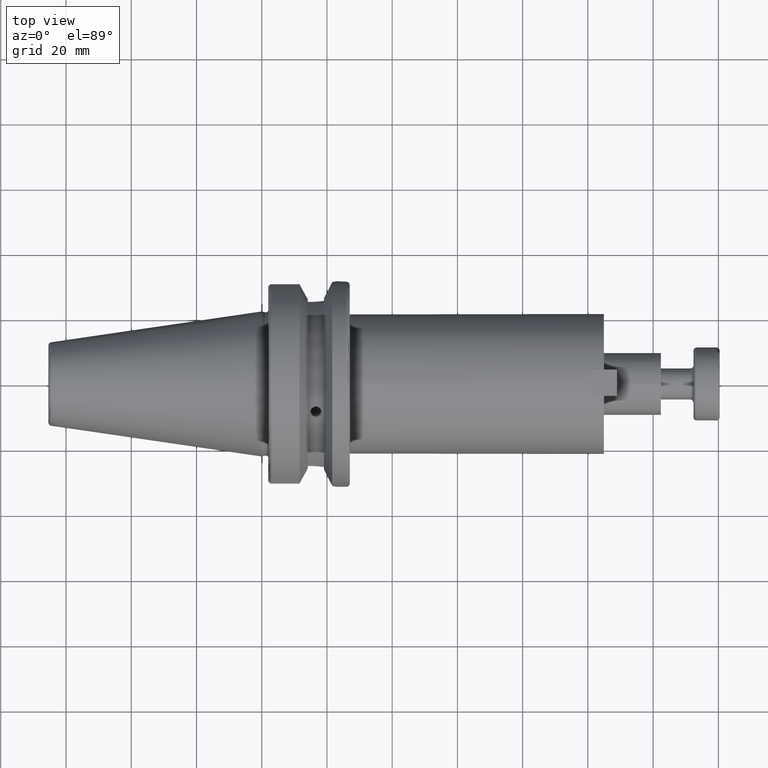
[diagram: clean part render]
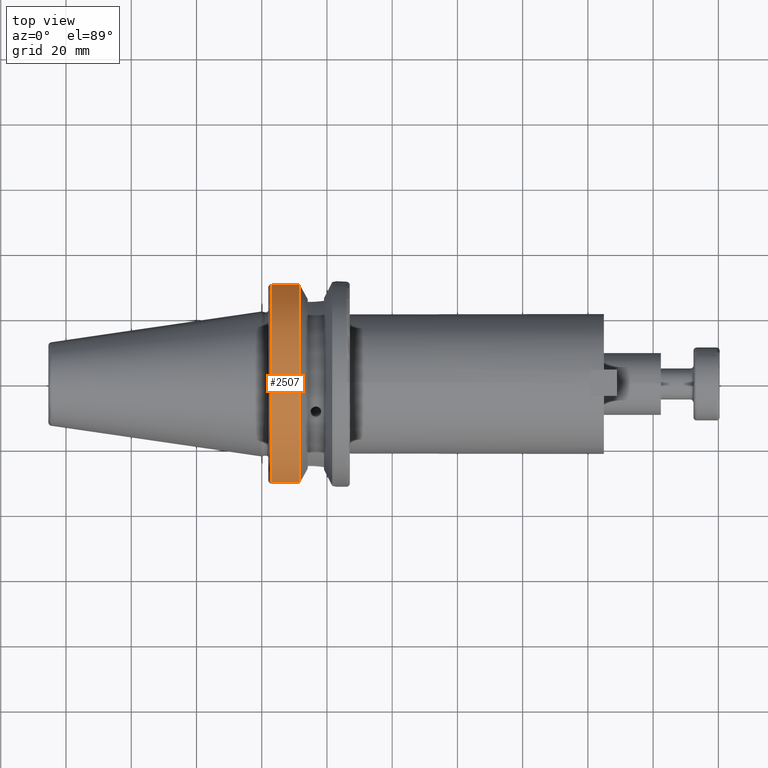
[diagram: same view with one face highlighted and labeled with its STEP entity id]
A machine part, top view. The second image highlights one B-rep face of the part: STEP entity #2507.
In plain terms, the highlighted cylindrical surface (partial cylindrical patch) has radius 31.5 mm, axis along (1, 0, 0).
Its self-contained STEP definition (entity closure, byte-faithful):
#593=CYLINDRICAL_SURFACE('',#2863,31.5);
#663=CIRCLE('',#2862,31.5);
#664=CIRCLE('',#2864,31.5000000000001);
#815=FACE_OUTER_BOUND('',#953,.T.);
#953=EDGE_LOOP('',(#2124,#2125,#2126,#2127));
#1070=LINE('',#4239,#1204);
#1090=LINE('',#4393,#1224);
#1204=VECTOR('',#3283,10.);
#1224=VECTOR('',#3351,10.);
#1372=VERTEX_POINT('',#4234);
#1373=VERTEX_POINT('',#4238);
#1402=VERTEX_POINT('',#4381);
#1403=VERTEX_POINT('',#4392);
#1603=EDGE_CURVE('',#1373,#1372,#1070,.T.);
#1646=EDGE_CURVE('',#1403,#1402,#1090,.T.);
#1667=EDGE_CURVE('',#1402,#1373,#663,.T.);
#1668=EDGE_CURVE('',#1403,#1372,#664,.T.);
#2124=ORIENTED_EDGE('',*,*,#1603,.T.);
#2125=ORIENTED_EDGE('',*,*,#1668,.F.);
#2126=ORIENTED_EDGE('',*,*,#1646,.T.);
#2127=ORIENTED_EDGE('',*,*,#1667,.T.);
#2507=ADVANCED_FACE('',(#815),#593,.T.);
#2862=AXIS2_PLACEMENT_3D('',#4436,#3403,#3404);
#2863=AXIS2_PLACEMENT_3D('',#4437,#3405,#3406);
#2864=AXIS2_PLACEMENT_3D('',#4438,#3407,#3408);
#3283=DIRECTION('',(1.,0.,0.));
#3351=DIRECTION('',(-1.,0.,0.));
#3403=DIRECTION('center_axis',(1.,0.,0.));
#3404=DIRECTION('ref_axis',(0.,0.,-1.));
#3405=DIRECTION('center_axis',(1.,0.,0.));
#3406=DIRECTION('ref_axis',(0.,1.,0.));
#3407=DIRECTION('center_axis',(1.,0.,0.));
#3408=DIRECTION('ref_axis',(0.,0.,-1.));
#4234=CARTESIAN_POINT('',(11.5690363073382,-30.4540227227866,8.05));
#4238=CARTESIAN_POINT('',(2.99999999999999,-30.4540227227866,8.05));
#4239=CARTESIAN_POINT('',(7.28451815366907,-30.4540227227866,8.05));
#4381=CARTESIAN_POINT('',(2.99999999999999,30.4540227227866,8.05));
#4392=CARTESIAN_POINT('',(11.5690363073382,30.4540227227866,8.05));
#4393=CARTESIAN_POINT('',(7.28451815366907,30.4540227227866,8.05));
#4436=CARTESIAN_POINT('Origin',(2.99999999999999,0.,0.));
#4437=CARTESIAN_POINT('Origin',(7.28451815366907,0.,0.));
#4438=CARTESIAN_POINT('Origin',(11.5690363073382,0.,0.));